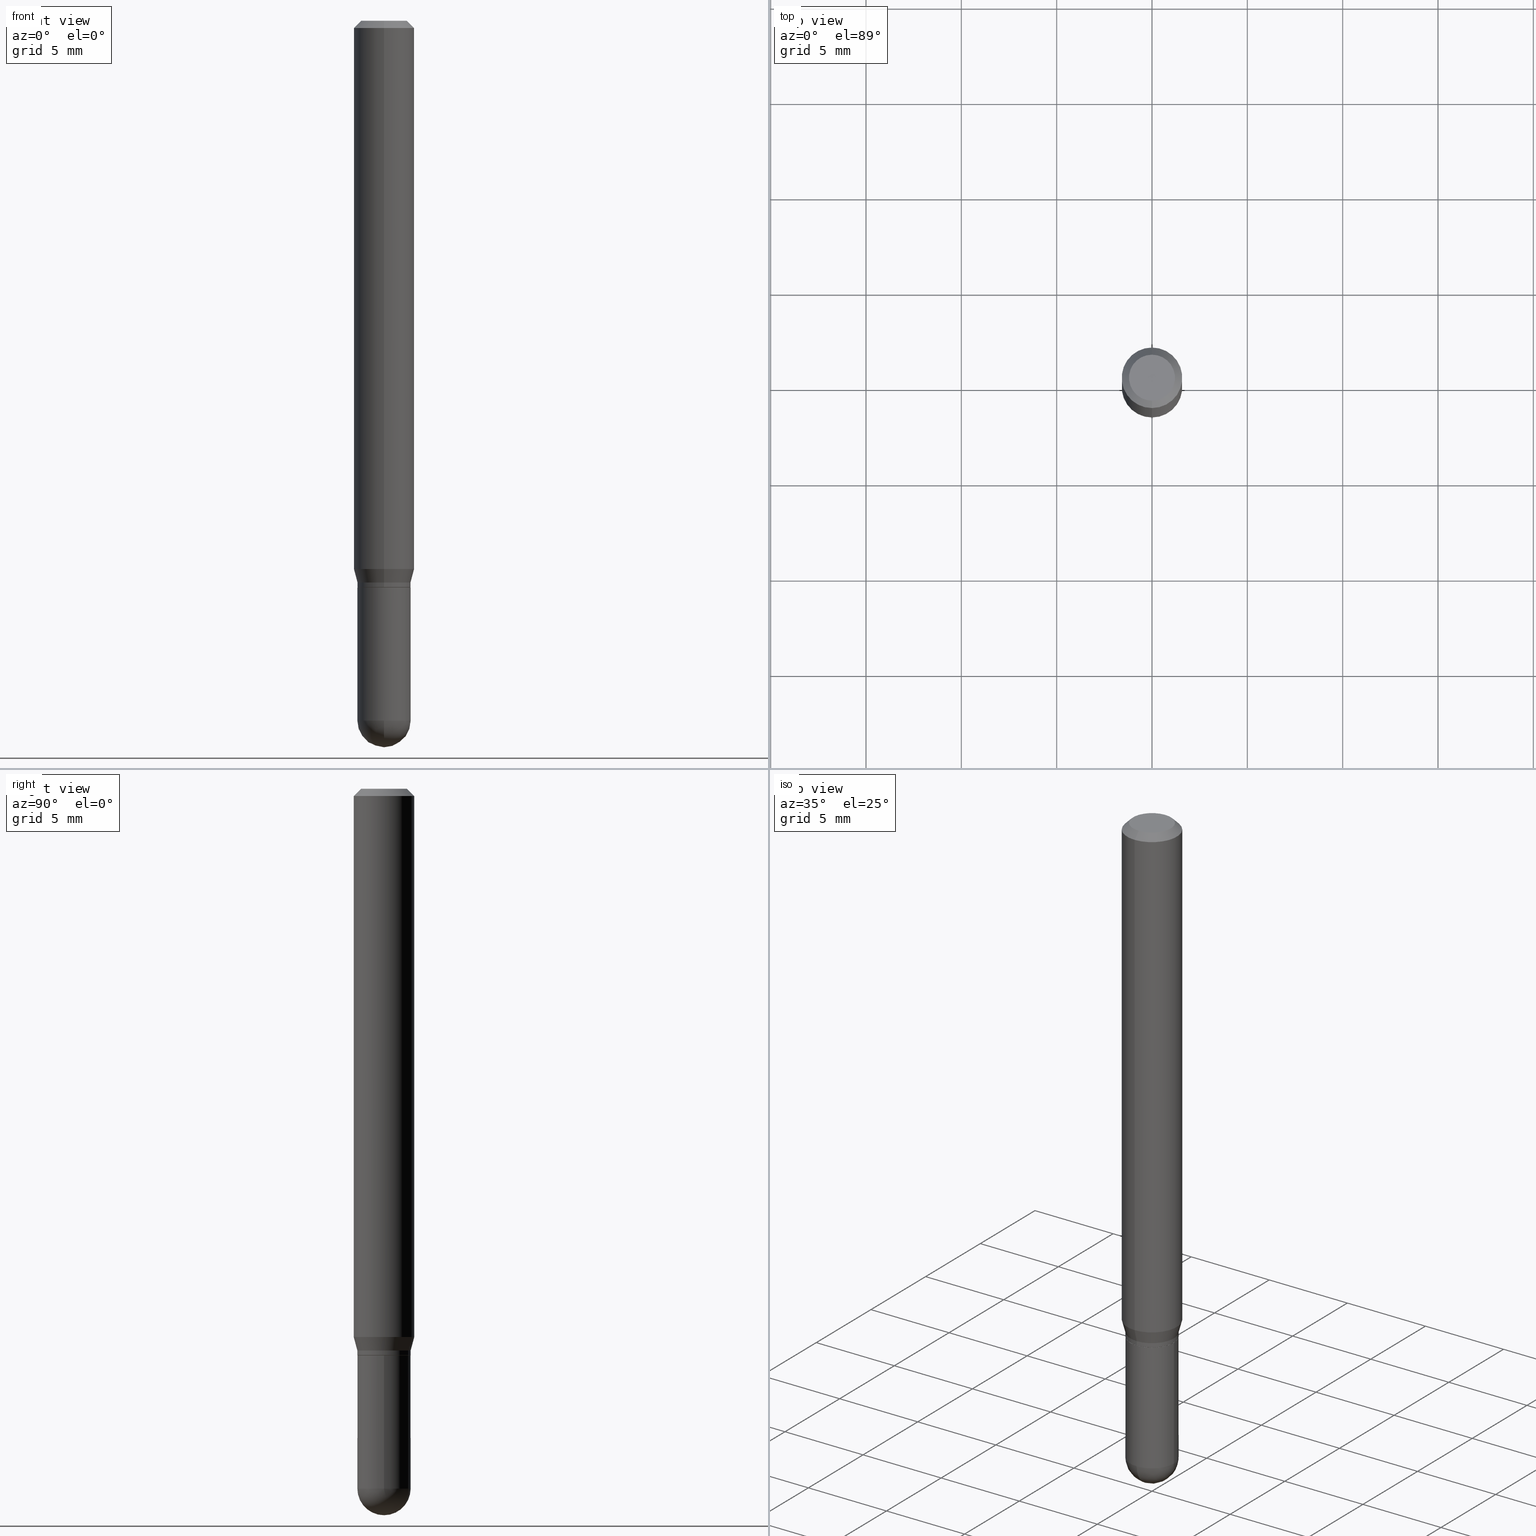
[diagram: canonical four-view strip — front | top / right | iso, engineering-drawing reading convention]
A machine part, canonical four-view strip (front | top / right | iso — engineering-drawing reading convention). The complete STEP part file that produces these views, byte-faithful:
ISO-10303-21;
HEADER;
FILE_DESCRIPTION (( 'STEP AP203' ),
    '1' );
FILE_NAME ('02637.STEP',
    '2024-03-07T20:57:14',
    ( '' ),
    ( '' ),
    'SwSTEP 2.0',
    'SolidWorks 2023',
    '' );
FILE_SCHEMA (( 'CONFIG_CONTROL_DESIGN' ));
ENDSEC;

DATA;
#1 = CARTESIAN_POINT ( 'NONE',  ( 3.907985046680554986E-16, 0.05500000000000006273, -1.920228468592449119E-16 ) ) ;
#2 = VERTEX_POINT ( 'NONE', #331 ) ;
#3 = DIMENSIONAL_EXPONENTS ( 1.000000000000000000, 0.000000000000000000, 0.000000000000000000, 0.000000000000000000, 0.000000000000000000, 0.000000000000000000, 0.000000000000000000 ) ;
#4 = DIRECTION ( 'NONE',  ( -2.445578334299165369E-29, 3.491324488349903437E-15, 1.000000000000000000 ) ) ;
#5 = ORIENTED_EDGE ( 'NONE', *, *, #120, .F. ) ;
#6 = AXIS2_PLACEMENT_3D ( 'NONE', #97, #305, #432 ) ;
#7 = DIRECTION ( 'NONE',  ( -2.445468806185136597E-29, 3.491481338843145583E-15, 1.000000000000000000 ) ) ;
#8 = ADVANCED_FACE ( 'NONE', ( #333 ), #257, .F. ) ;
#9 = VERTEX_POINT ( 'NONE', #212 ) ;
#10 = CIRCLE ( 'NONE', #364, 0.06250000000000000000 ) ;
#11 = DIRECTION ( 'NONE',  ( -6.982962677686265922E-15, -1.000000000000000000, 3.491324488349903437E-15 ) ) ;
#12 = ORIENTED_EDGE ( 'NONE', *, *, #187, .F. ) ;
#13 = CYLINDRICAL_SURFACE ( 'NONE', #329, 0.06250000000000000000 ) ;
#14 = ORIENTED_EDGE ( 'NONE', *, *, #468, .T. ) ;
#15 = VECTOR ( 'NONE', #208, 39.37007874015748143 ) ;
#16 = DIRECTION ( 'NONE',  ( 6.982962677686265922E-15, 1.000000000000000000, -3.491324488349903437E-15 ) ) ;
#17 = CIRCLE ( 'NONE', #64, 0.05500000000000018763 ) ;
#18 = EDGE_CURVE ( 'NONE', #38, #347, #21, .T. ) ;
#19 = DIRECTION ( 'NONE',  ( -6.982962677686266711E-15, -1.000000000000000000, 2.506282562994736586E-15 ) ) ;
#20 = VERTEX_POINT ( 'NONE', #369 ) ;
#21 = LINE ( 'NONE', #50, #29 ) ;
#22 = CC_DESIGN_APPROVAL ( #355, ( #414 ) ) ;
#23 = CARTESIAN_POINT ( 'NONE',  ( 3.907985046680910960E-16, 0.05499999999999503897, -1.445000000000000284 ) ) ;
#24 = PERSON_AND_ORGANIZATION_ROLE ( 'design_owner' ) ;
#25 = DIRECTION ( 'NONE',  ( -6.982962677686265922E-15, -1.000000000000000000, 3.483106191921935554E-15 ) ) ;
#26 = APPLICATION_PROTOCOL_DEFINITION ( 'international standard', 'config_control_design', 1994, #430 ) ;
#27 = DIRECTION ( 'NONE',  ( -2.445468806185136597E-29, 3.491481338843145583E-15, 1.000000000000000000 ) ) ;
#28 = VECTOR ( 'NONE', #356, 39.37007874015748854 ) ;
#29 = VECTOR ( 'NONE', #377, 39.37007874015748143 ) ;
#30 = CARTESIAN_POINT ( 'NONE',  ( 2.861198503236610065E-29, -4.085033166446480067E-15, -1.170000000000000151 ) ) ;
#31 = ORIENTED_EDGE ( 'NONE', *, *, #386, .T. ) ;
#32 = DIRECTION ( 'NONE',  ( 1.000000000000000000, -6.982962677686265922E-15, 4.883557194083112901E-29 ) ) ;
#33 = PERSON_AND_ORGANIZATION_ROLE ( 'design_supplier' ) ;
#34 = DIRECTION ( 'NONE',  ( -6.982962677686266711E-15, -1.000000000000000000, 2.506282562994736586E-15 ) ) ;
#35 = ORIENTED_EDGE ( 'NONE', *, *, #332, .F. ) ;
#36 = VECTOR ( 'NONE', #155, 39.37007874015748854 ) ;
#37 = CARTESIAN_POINT ( 'NONE',  ( -4.364351673553912750E-16, -0.06250000000000005551, -0.01500000000000011047 ) ) ;
#38 = VERTEX_POINT ( 'NONE', #251 ) ;
#39 = PLANE ( 'NONE',  #431 ) ;
#40 = ORIENTED_EDGE ( 'NONE', *, *, #484, .T. ) ;
#41 = ADVANCED_FACE ( 'NONE', ( #457 ), #492, .T. ) ;
#42 = DIRECTION ( 'NONE',  ( 1.000000000000000000, -6.982962677686262766E-15, 0.000000000000000000 ) ) ;
#43 = ORIENTED_EDGE ( 'NONE', *, *, #343, .F. ) ;
#44 = CIRCLE ( 'NONE', #303, 0.05500000000000000028 ) ;
#45 = DIRECTION ( 'NONE',  ( -2.445468806185136597E-29, 3.491481338843145583E-15, 1.000000000000000000 ) ) ;
#46 = ORIENTED_EDGE ( 'NONE', *, *, #133, .T. ) ;
#47 = COORDINATED_UNIVERSAL_TIME_OFFSET ( 5, 0, .BEHIND. ) ;
#48 = DIRECTION ( 'NONE',  ( -2.445468806185136597E-29, 3.491481338843145583E-15, 1.000000000000000000 ) ) ;
#49 = ORIENTED_EDGE ( 'NONE', *, *, #214, .F. ) ;
#50 = CARTESIAN_POINT ( 'NONE',  ( -4.364351673553916201E-16, -0.06250000000000000000, 2.182077805218689648E-16 ) ) ;
#51 = ADVANCED_FACE ( 'NONE', ( #128 ), #92, .T. ) ;
#52 = CIRCLE ( 'NONE', #342, 0.06250000000000000000 ) ;
#53 = CYLINDRICAL_SURFACE ( 'NONE', #378, 0.06250000000000000000 ) ;
#54 = AXIS2_PLACEMENT_3D ( 'NONE', #417, #172, #91 ) ;
#55 = DIRECTION ( 'NONE',  ( -6.982962677686265922E-15, -1.000000000000000000, 2.483498176058418383E-15 ) ) ;
#56 = LINE ( 'NONE', #129, #237 ) ;
#57 = CARTESIAN_POINT ( 'NONE',  ( 3.668367501448828558E-31, -5.236986732524968973E-17, -0.01500000000000032904 ) ) ;
#58 = CIRCLE ( 'NONE', #370, 0.05500000000000000028 ) ;
#59 = DIRECTION ( 'NONE',  ( -4.851104656540964275E-15, -0.7071067811865500152, -0.7071067811865450192 ) ) ;
#60 = FACE_OUTER_BOUND ( 'NONE', #404, .T. ) ;
#61 = ADVANCED_FACE ( 'NONE', ( #87 ), #413, .T. ) ;
#62 = CARTESIAN_POINT ( 'NONE',  ( -3.805714659338729375E-16, -0.05450000000000408684, -1.169999999999999929 ) ) ;
#63 = PERSON_AND_ORGANIZATION ( #429, #396 ) ;
#64 = AXIS2_PLACEMENT_3D ( 'NONE', #118, #400, #358 ) ;
#65 = ADVANCED_FACE ( 'NONE', ( #336 ), #53, .T. ) ;
#66 = AXIS2_PLACEMENT_3D ( 'NONE', #252, #334, #16 ) ;
#67 = CARTESIAN_POINT ( 'NONE',  ( -4.287811248607203282E-16, -0.06250000000000005551, -0.01500000000000011047 ) ) ;
#68 = PERSON_AND_ORGANIZATION ( #429, #396 ) ;
#69 = ORIENTED_EDGE ( 'NONE', *, *, #124, .T. ) ;
#70 = ADVANCED_FACE ( 'NONE', ( #126 ), #171, .T. ) ;
#71 = CARTESIAN_POINT ( 'NONE',  ( 2.860103861962873798E-29, -4.083103989125212121E-15, -1.169499999999999984 ) ) ;
#72 = ORIENTED_EDGE ( 'NONE', *, *, #360, .T. ) ;
#73 = DIRECTION ( 'NONE',  ( -2.445578334299164808E-29, 3.491324488349903437E-15, 1.000000000000000000 ) ) ;
#74 = EDGE_CURVE ( 'NONE', #175, #288, #56, .T. ) ;
#75 = ORIENTED_EDGE ( 'NONE', *, *, #501, .F. ) ;
#76 = AXIS2_PLACEMENT_3D ( 'NONE', #169, #488, #174 ) ;
#77 = DIRECTION ( 'NONE',  ( 6.982962677686265922E-15, 1.000000000000000000, -3.483106191921935554E-15 ) ) ;
#78 = ORIENTED_EDGE ( 'NONE', *, *, #297, .T. ) ;
#79 = CARTESIAN_POINT ( 'NONE',  ( 3.533702424937522517E-29, -5.045190534628345684E-15, -1.445000000000000062 ) ) ;
#80 = VERTEX_POINT ( 'NONE', #496 ) ;
#81 = DIRECTION ( 'NONE',  ( 1.000000000000000000, -6.982962677686262766E-15, 0.000000000000000000 ) ) ;
#82 = ORIENTED_EDGE ( 'NONE', *, *, #489, .T. ) ;
#83 = DIRECTION ( 'NONE',  ( -6.982962677686265922E-15, -1.000000000000000000, 3.491324488349903437E-15 ) ) ;
#84 = ORIENTED_EDGE ( 'NONE', *, *, #295, .T. ) ;
#85 = AXIS2_PLACEMENT_3D ( 'NONE', #381, #302, #104 ) ;
#86 = ADVANCED_FACE ( 'NONE', ( #410 ), #330, .T. ) ;
#87 = FACE_OUTER_BOUND ( 'NONE', #246, .T. ) ;
#88 = EDGE_LOOP ( 'NONE', ( #421, #285, #312, #264 ) ) ;
#89 = EDGE_CURVE ( 'NONE', #117, #362, #456, .T. ) ;
#90 = CIRCLE ( 'NONE', #170, 0.05500000000000006273 ) ;
#91 = DIRECTION ( 'NONE',  ( 6.982962677686265922E-15, 1.000000000000000000, -3.483106191921935554E-15 ) ) ;
#92 = CONICAL_SURFACE ( 'NONE', #54, 0.06250000000000000000, 0.7853981633974483900 ) ;
#93 = DIRECTION ( 'NONE',  ( 1.000000000000000000, -6.982962677686266711E-15, 4.876176775795935793E-29 ) ) ;
#94 = PRODUCT ( '02637', '02637', '', ( #380 ) ) ;
#95 = DIRECTION ( 'NONE',  ( -2.445578334299165369E-29, 3.491324488349903437E-15, 1.000000000000000000 ) ) ;
#96 = APPROVAL_DATE_TIME ( #141, #183 ) ;
#97 = CARTESIAN_POINT ( 'NONE',  ( 2.861198503236610065E-29, -4.085033166446480067E-15, -1.170000000000000151 ) ) ;
#98 = AXIS2_PLACEMENT_3D ( 'NONE', #506, #148, #146 ) ;
#99 = APPROVAL_ROLE ( '' ) ;
#100 = CARTESIAN_POINT ( 'NONE',  ( -0.05500000000000000028, -4.174313345869358610E-15, -1.170000000000000151 ) ) ;
#101 = CALENDAR_DATE ( 2024, 7, 3 ) ;
#102 = LINE ( 'NONE', #507, #313 ) ;
#103 = APPROVAL_DATE_TIME ( #465, #355 ) ;
#104 = DIRECTION ( 'NONE',  ( -1.000000000000000000, 6.982962677686265922E-15, -4.876176775795935793E-29 ) ) ;
#105 = CALENDAR_DATE ( 2024, 7, 3 ) ;
#106 = VECTOR ( 'NONE', #59, 39.37007874015748143 ) ;
#107 = DIRECTION ( 'NONE',  ( -6.982962677686265133E-15, -1.000000000000000000, 2.483498176058417988E-15 ) ) ;
#108 = DATE_AND_TIME ( #310, #142 ) ;
#109 = VERTEX_POINT ( 'NONE', #259 ) ;
#110 = CC_DESIGN_PERSON_AND_ORGANIZATION_ASSIGNMENT ( #179, #341, ( #293 ) ) ;
#111 = LINE ( 'NONE', #275, #15 ) ;
#112 = ORIENTED_EDGE ( 'NONE', *, *, #297, .F. ) ;
#113 = CARTESIAN_POINT ( 'NONE',  ( 2.861326651130023882E-29, -4.084849651369386966E-15, -1.170000000000000151 ) ) ;
#114 = ORIENTED_EDGE ( 'NONE', *, *, #74, .T. ) ;
#115 = CC_DESIGN_APPROVAL ( #256, ( #293 ) ) ;
#116 = CARTESIAN_POINT ( 'NONE',  ( 0.05500000000000000028, -3.840629472727446888E-16, 2.681897226687764826E-30 ) ) ;
#117 = VERTEX_POINT ( 'NONE', #418 ) ;
#118 = CARTESIAN_POINT ( 'NONE',  ( 3.528999010347036160E-29, -5.051926092023656149E-15, -1.445000000000000062 ) ) ;
#119 = ORIENTED_EDGE ( 'NONE', *, *, #167, .T. ) ;
#120 = EDGE_CURVE ( 'NONE', #288, #347, #248, .T. ) ;
#121 = FACE_OUTER_BOUND ( 'NONE', #409, .T. ) ;
#122 = ORIENTED_EDGE ( 'NONE', *, *, #425, .T. ) ;
#123 = AXIS2_PLACEMENT_3D ( 'NONE', #379, #502, #509 ) ;
#124 = EDGE_CURVE ( 'NONE', #347, #288, #10, .T. ) ;
#125 = CARTESIAN_POINT ( 'NONE',  ( 0.000000000000000000, 0.000000000000000000, 0.000000000000000000 ) ) ;
#126 = FACE_OUTER_BOUND ( 'NONE', #447, .T. ) ;
#127 = CIRCLE ( 'NONE', #132, 0.05500000000000000028 ) ;
#128 = FACE_OUTER_BOUND ( 'NONE', #149, .T. ) ;
#129 = CARTESIAN_POINT ( 'NONE',  ( 4.364351673553919652E-16, 0.06249999999999995143, -0.01500000000000054588 ) ) ;
#130 = AXIS2_PLACEMENT_3D ( 'NONE', #435, #265, #262 ) ;
#131 = CARTESIAN_POINT ( 'NONE',  ( 0.000000000000000000, 0.000000000000000000, 0.000000000000000000 ) ) ;
#132 = AXIS2_PLACEMENT_3D ( 'NONE', #30, #229, #309 ) ;
#133 = EDGE_CURVE ( 'NONE', #318, #233, #127, .T. ) ;
#134 = DIRECTION ( 'NONE',  ( 4.937700262164548042E-15, 0.7071067811865451302, -0.7071067811865499042 ) ) ;
#135 = DIRECTION ( 'NONE',  ( -2.445578334299165369E-29, 3.491324488349903437E-15, 1.000000000000000000 ) ) ;
#136 = LINE ( 'NONE', #390, #227 ) ;
#137 = ADVANCED_FACE ( 'NONE', ( #60 ), #389, .T. ) ;
#138 = DIRECTION ( 'NONE',  ( -6.982962677686265922E-15, -1.000000000000000000, 3.491324488349903437E-15 ) ) ;
#139 = CIRCLE ( 'NONE', #486, 0.05500000000000000028 ) ;
#140 = PERSON_AND_ORGANIZATION ( #429, #396 ) ;
#141 = DATE_AND_TIME ( #424, #311 ) ;
#142 = LOCAL_TIME ( 15, 57, 14.00000000000000000, #152 ) ;
#143 = AXIS2_PLACEMENT_3D ( 'NONE', #131, #294, #93 ) ;
#144 = AXIS2_PLACEMENT_3D ( 'NONE', #234, #325, #77 ) ;
#145 = DIRECTION ( 'NONE',  ( -2.445578334299165369E-29, 3.491324488349903437E-15, 1.000000000000000000 ) ) ;
#146 = DIRECTION ( 'NONE',  ( 1.000000000000000000, 0.000000000000000000, 0.000000000000000000 ) ) ;
#147 = CARTESIAN_POINT ( 'NONE',  ( 2.836870867787032287E-29, -4.049936406485888492E-15, -1.160000000000000142 ) ) ;
#148 = DIRECTION ( 'NONE',  ( 0.000000000000000000, 0.000000000000000000, 1.000000000000000000 ) ) ;
#149 = EDGE_LOOP ( 'NONE', ( #472, #119, #69, #166 ) ) ;
#150 = MANIFOLD_SOLID_BREP ( 'Body-Move/Copy2[2]', #205 ) ;
#151 = CARTESIAN_POINT ( 'NONE',  ( -0.05500000000000000028, -4.174313345869358610E-15, -1.445000000000000062 ) ) ;
#152 = COORDINATED_UNIVERSAL_TIME_OFFSET ( 5, 0, .BEHIND. ) ;
#153 = APPLICATION_CONTEXT ( 'configuration controlled 3d designs of mechanical parts and assemblies' ) ;
#154 = CIRCLE ( 'NONE', #451, 0.06250000000000000000 ) ;
#155 = DIRECTION ( 'NONE',  ( 1.839019923739595582E-15, 0.2588190451025242922, 0.9659258262890673130 ) ) ;
#156 = ORIENTED_EDGE ( 'NONE', *, *, #416, .F. ) ;
#157 = DIRECTION ( 'NONE',  ( -6.982962677686266711E-15, -1.000000000000000000, 3.491324488349903437E-15 ) ) ;
#158 = ORIENTED_EDGE ( 'NONE', *, *, #253, .F. ) ;
#159 = ADVANCED_FACE ( 'NONE', ( #273 ), #189, .T. ) ;
#160 = CARTESIAN_POINT ( 'NONE',  ( 3.872457909892832456E-16, 0.05449999999999592670, -1.170000000000000151 ) ) ;
#161 = ORIENTED_EDGE ( 'NONE', *, *, #468, .F. ) ;
#162 = AXIS2_PLACEMENT_3D ( 'NONE', #79, #45, #81 ) ;
#163 = DIRECTION ( 'NONE',  ( 1.000000000000000000, -6.982962677686262766E-15, 0.000000000000000000 ) ) ;
#164 = ORIENTED_EDGE ( 'NONE', *, *, #283, .T. ) ;
#165 = CARTESIAN_POINT ( 'NONE',  ( 3.528999010347036160E-29, -5.051926092023656149E-15, -1.445000000000000062 ) ) ;
#166 = ORIENTED_EDGE ( 'NONE', *, *, #74, .F. ) ;
#167 = EDGE_CURVE ( 'NONE', #2, #347, #184, .T. ) ;
#168 = FACE_OUTER_BOUND ( 'NONE', #441, .T. ) ;
#169 = CARTESIAN_POINT ( 'NONE',  ( 0.000000000000000000, 0.000000000000000000, 0.000000000000000000 ) ) ;
#170 = AXIS2_PLACEMENT_3D ( 'NONE', #71, #178, #464 ) ;
#171 = CONICAL_SURFACE ( 'NONE', #371, 0.05450000000000000677, 0.7853981633974653764 ) ;
#172 = DIRECTION ( 'NONE',  ( 2.445578334299165369E-29, -3.491324488349903437E-15, -1.000000000000000000 ) ) ;
#173 = AXIS2_PLACEMENT_3D ( 'NONE', #57, #218, #415 ) ;
#174 = DIRECTION ( 'NONE',  ( -6.982962677686265922E-15, -1.000000000000000000, 3.491324488349903437E-15 ) ) ;
#175 = VERTEX_POINT ( 'NONE', #224 ) ;
#176 = LOCAL_TIME ( 15, 57, 14.00000000000000000, #345 ) ;
#177 = CARTESIAN_POINT ( 'NONE',  ( 0.000000000000000000, 0.000000000000000000, 0.000000000000000000 ) ) ;
#178 = DIRECTION ( 'NONE',  ( -2.445578334299165369E-29, 3.491324488349903437E-15, 1.000000000000000000 ) ) ;
#179 = PERSON_AND_ORGANIZATION ( #429, #396 ) ;
#180 = APPROVAL_ROLE ( '' ) ;
#181 = DIRECTION ( 'NONE',  ( -2.445468806185136877E-29, 3.491481338843145188E-15, 1.000000000000000000 ) ) ;
#182 = APPROVAL_DATE_TIME ( #272, #256 ) ;
#183 = APPROVAL ( #491, 'UNSPECIFIED' ) ;
#184 = LINE ( 'NONE', #67, #106 ) ;
#185 = APPROVAL_PERSON_ORGANIZATION ( #306, #355, #339 ) ;
#186 = LENGTH_MEASURE_WITH_UNIT ( LENGTH_MEASURE( 0.02539999999999999897 ), #299 );
#187 = EDGE_CURVE ( 'NONE', #278, #233, #102, .T. ) ;
#188 = CARTESIAN_POINT ( 'NONE',  ( 0.000000000000000000, 0.000000000000000000, 0.000000000000000000 ) ) ;
#189 = CYLINDRICAL_SURFACE ( 'NONE', #462, 0.05500000000000000028 ) ;
#190 = ADVANCED_FACE ( 'NONE', ( #226 ), #221, .F. ) ;
#191 = DATE_AND_TIME ( #101, #469 ) ;
#192 = ORIENTED_EDGE ( 'NONE', *, *, #416, .T. ) ;
#193 = CARTESIAN_POINT ( 'NONE',  ( 4.440892098500901277E-16, 0.06249999999999603789, -1.132009618943234264 ) ) ;
#194 = AXIS2_PLACEMENT_3D ( 'NONE', #201, #365, #480 ) ;
#195 = CONICAL_SURFACE ( 'NONE', #372, 0.05500000000000006967, 0.2617993877991495744 ) ;
#196 = LINE ( 'NONE', #361, #28 ) ;
#197 = ORIENTED_EDGE ( 'NONE', *, *, #489, .F. ) ;
#198 = LINE ( 'NONE', #160, #419 ) ;
#199 = ORIENTED_EDGE ( 'NONE', *, *, #376, .F. ) ;
#200 = CC_DESIGN_DATE_AND_TIME_ASSIGNMENT ( #191, #385, ( #293 ) ) ;
#201 = CARTESIAN_POINT ( 'NONE',  ( 2.836870867787032287E-29, -4.049936406485888492E-15, -1.160000000000000142 ) ) ;
#202 = ORIENTED_EDGE ( 'NONE', *, *, #386, .F. ) ;
#203 = AXIS2_PLACEMENT_3D ( 'NONE', #338, #135, #298 ) ;
#204 = CC_DESIGN_APPROVAL ( #183, ( #388 ) ) ;
#205 = CLOSED_SHELL ( 'NONE', ( #137, #70, #51, #65, #216, #225, #497, #316, #8, #374, #86, #61 ) ) ;
#206 = CARTESIAN_POINT ( 'NONE',  ( 3.907985046680839469E-16, 0.05499999999999602429, -1.160000000000000364 ) ) ;
#207 = ORIENTED_EDGE ( 'NONE', *, *, #501, .T. ) ;
#208 = DIRECTION ( 'NONE',  ( -2.445578334299165649E-29, 3.491324488349903437E-15, 1.000000000000000000 ) ) ;
#209 = ORIENTED_EDGE ( 'NONE', *, *, #187, .T. ) ;
#210 = ADVANCED_FACE ( 'NONE', ( #384 ), #307, .T. ) ;
#211 = ORIENTED_EDGE ( 'NONE', *, *, #133, .F. ) ;
#212 = CARTESIAN_POINT ( 'NONE',  ( 4.174438572590871852E-16, 0.05499999999999602429, -1.160000000000000364 ) ) ;
#213 =( GEOMETRIC_REPRESENTATION_CONTEXT ( 3 ) GLOBAL_UNCERTAINTY_ASSIGNED_CONTEXT ( ( #394 ) ) GLOBAL_UNIT_ASSIGNED_CONTEXT ( ( #266, #220, #423 ) ) REPRESENTATION_CONTEXT ( 'NONE', 'WORKASPACE' ) );
#214 = EDGE_CURVE ( 'NONE', #38, #438, #154, .T. ) ;
#215 = CARTESIAN_POINT ( 'NONE',  ( 3.668367501448828558E-31, -5.236986732524968973E-17, -0.01500000000000032904 ) ) ;
#216 = ADVANCED_FACE ( 'NONE', ( #467 ), #195, .T. ) ;
#217 = DIRECTION ( 'NONE',  ( -2.445578334299165369E-29, 3.491324488349903437E-15, 1.000000000000000000 ) ) ;
#218 = DIRECTION ( 'NONE',  ( -2.445578334299165369E-29, 3.491324488349903437E-15, 1.000000000000000000 ) ) ;
#219 = AXIS2_PLACEMENT_3D ( 'NONE', #463, #32, #348 ) ;
#220 =( NAMED_UNIT ( * ) PLANE_ANGLE_UNIT ( ) SI_UNIT ( $, .RADIAN. ) );
#221 = PLANE ( 'NONE',  #85 ) ;
#222 = DIRECTION ( 'NONE',  ( -2.445578334299165649E-29, 3.491324488349903437E-15, 1.000000000000000000 ) ) ;
#223 = VERTEX_POINT ( 'NONE', #23 ) ;
#224 = CARTESIAN_POINT ( 'NONE',  ( 3.840629472727447874E-16, 0.04749999999999999362, -4.939923113072091241E-16 ) ) ;
#225 = ADVANCED_FACE ( 'NONE', ( #499 ), #439, .T. ) ;
#226 = FACE_OUTER_BOUND ( 'NONE', #436, .T. ) ;
#227 = VECTOR ( 'NONE', #222, 39.37007874015748143 ) ;
#228 = EDGE_CURVE ( 'NONE', #233, #318, #254, .T. ) ;
#229 = DIRECTION ( 'NONE',  ( -2.445468806185136597E-29, 3.491481338843145583E-15, 1.000000000000000000 ) ) ;
#230 = PERSON_AND_ORGANIZATION_ROLE ( 'creator' ) ;
#231 = VERTEX_POINT ( 'NONE', #391 ) ;
#232 = LINE ( 'NONE', #206, #36 ) ;
#233 = VERTEX_POINT ( 'NONE', #100 ) ;
#234 = CARTESIAN_POINT ( 'NONE',  ( 3.668367501448828558E-31, -5.236986732524968973E-17, -0.01500000000000032904 ) ) ;
#235 = ORIENTED_EDGE ( 'NONE', *, *, #466, .F. ) ;
#236 = CONICAL_SURFACE ( 'NONE', #144, 0.06250000000000000000, 0.7853981633974483900 ) ;
#237 = VECTOR ( 'NONE', #134, 39.37007874015748143 ) ;
#238 = CIRCLE ( 'NONE', #123, 0.05500000000000018763 ) ;
#239 = DIRECTION ( 'NONE',  ( -4.937700262164631661E-15, -0.7071067811865571207, 0.7071067811865379138 ) ) ;
#240 = PERSON_AND_ORGANIZATION ( #429, #396 ) ;
#241 = EDGE_LOOP ( 'NONE', ( #158, #192, #43, #197 ) ) ;
#242 = CC_DESIGN_PERSON_AND_ORGANIZATION_ASSIGNMENT ( #471, #24, ( #94 ) ) ;
#243 = DIRECTION ( 'NONE',  ( -2.445578334299165649E-29, 3.491324488349903437E-15, 1.000000000000000000 ) ) ;
#244 = ORIENTED_EDGE ( 'NONE', *, *, #228, .F. ) ;
#245 = DIRECTION ( 'NONE',  ( -2.445468806185136877E-29, 3.491481338843145188E-15, 1.000000000000000000 ) ) ;
#246 = EDGE_LOOP ( 'NONE', ( #202, #164, #207, #326 ) ) ;
#247 = LOCAL_TIME ( 15, 57, 14.00000000000000000, #434 ) ;
#248 = CIRCLE ( 'NONE', #173, 0.06250000000000000000 ) ;
#249 = CARTESIAN_POINT ( 'NONE',  ( 2.768418198305827226E-29, -3.952212903664154629E-15, -1.132009618943233820 ) ) ;
#250 = ORIENTED_EDGE ( 'NONE', *, *, #443, .T. ) ;
#251 = CARTESIAN_POINT ( 'NONE',  ( -4.364351673553640100E-16, -0.06250000000000395517, -1.132009618943233598 ) ) ;
#252 = CARTESIAN_POINT ( 'NONE',  ( 3.316907271900976096E-16, 0.04749999999999999362, -3.299151122519147203E-16 ) ) ;
#253 = EDGE_CURVE ( 'NONE', #80, #223, #238, .T. ) ;
#254 = CIRCLE ( 'NONE', #6, 0.05500000000000000028 ) ;
#255 = CARTESIAN_POINT ( 'NONE',  ( 2.861326651130023882E-29, -4.084849651369386966E-15, -1.170000000000000151 ) ) ;
#256 = APPROVAL ( #269, 'UNSPECIFIED' ) ;
#257 = PLANE ( 'NONE',  #66 ) ;
#258 = EDGE_CURVE ( 'NONE', #109, #9, #363, .T. ) ;
#259 = CARTESIAN_POINT ( 'NONE',  ( -3.840629472727166842E-16, -0.05500000000000411504, -1.160000000000000142 ) ) ;
#260 = VECTOR ( 'NONE', #245, 39.37007874015748143 ) ;
#261 = CC_DESIGN_PERSON_AND_ORGANIZATION_ASSIGNMENT ( #68, #230, ( #414 ) ) ;
#262 = DIRECTION ( 'NONE',  ( -6.982962677686265133E-15, -1.000000000000000000, 2.483498176058417988E-15 ) ) ;
#263 = APPROVAL_STATUS ( 'not_yet_approved' ) ;
#264 = ORIENTED_EDGE ( 'NONE', *, *, #18, .F. ) ;
#265 = DIRECTION ( 'NONE',  ( -2.445578334299165369E-29, 3.491324488349903437E-15, 1.000000000000000000 ) ) ;
#266 =( CONVERSION_BASED_UNIT ( 'INCH', #186 ) LENGTH_UNIT ( ) NAMED_UNIT ( #3 ) );
#267 = SHAPE_DEFINITION_REPRESENTATION ( #498, #412 ) ;
#268 = CARTESIAN_POINT ( 'NONE',  ( 4.440892098500904235E-16, 0.06249999999999995143, -0.01500000000000054588 ) ) ;
#269 = APPROVAL_STATUS ( 'not_yet_approved' ) ;
#270 = DIRECTION ( 'NONE',  ( -2.445578334299165369E-29, 3.491324488349903437E-15, 1.000000000000000000 ) ) ;
#271 = CIRCLE ( 'NONE', #162, 0.05500000000000000028 ) ;
#272 = DATE_AND_TIME ( #105, #176 ) ;
#273 = FACE_OUTER_BOUND ( 'NONE', #398, .T. ) ;
#274 = DATE_TIME_ROLE ( 'classification_date' ) ;
#275 = CARTESIAN_POINT ( 'NONE',  ( 4.440892098500625669E-16, 0.06250000000000000000, -2.182077805218689648E-16 ) ) ;
#276 = ORIENTED_EDGE ( 'NONE', *, *, #89, .F. ) ;
#277 = FACE_OUTER_BOUND ( 'NONE', #241, .T. ) ;
#278 = VERTEX_POINT ( 'NONE', #151 ) ;
#279 = AXIS2_PLACEMENT_3D ( 'NONE', #147, #270, #107 ) ;
#280 = CIRCLE ( 'NONE', #351, 0.05450000000000000677 ) ;
#281 = FACE_OUTER_BOUND ( 'NONE', #450, .T. ) ;
#282 = EDGE_LOOP ( 'NONE', ( #12, #368, #454, #324, #244 ) ) ;
#283 = EDGE_CURVE ( 'NONE', #362, #117, #90, .T. ) ;
#284 = CARTESIAN_POINT ( 'NONE',  ( 3.890221478286836949E-16, 0.05449999999999592670, -1.170000000000000151 ) ) ;
#285 = ORIENTED_EDGE ( 'NONE', *, *, #475, .T. ) ;
#286 = CC_DESIGN_PERSON_AND_ORGANIZATION_ASSIGNMENT ( #63, #349, ( #388 ) ) ;
#287 = CARTESIAN_POINT ( 'NONE',  ( 2.861326651130023882E-29, -4.084849651369386966E-15, -1.170000000000000151 ) ) ;
#288 = VERTEX_POINT ( 'NONE', #268 ) ;
#289 = DIRECTION ( 'NONE',  ( -2.445578334299165369E-29, 3.491324488349903437E-15, 1.000000000000000000 ) ) ;
#290 = ORIENTED_EDGE ( 'NONE', *, *, #18, .T. ) ;
#291 = EDGE_LOOP ( 'NONE', ( #161, #315, #477, #366 ) ) ;
#292 = VERTEX_POINT ( 'NONE', #62 ) ;
#293 = PRODUCT_DEFINITION ( 'UNKNOWN', '', #414, #433 ) ;
#294 = DIRECTION ( 'NONE',  ( -2.445468806185136597E-29, 3.491481338843145583E-15, 1.000000000000000000 ) ) ;
#295 = EDGE_CURVE ( 'NONE', #2, #175, #455, .T. ) ;
#296 = DIRECTION ( 'NONE',  ( -6.982962677686266711E-15, -1.000000000000000000, 2.506282562994736586E-15 ) ) ;
#297 = EDGE_CURVE ( 'NONE', #175, #2, #494, .T. ) ;
#298 = DIRECTION ( 'NONE',  ( -6.982962677686266711E-15, -1.000000000000000000, 3.491324488349903437E-15 ) ) ;
#299 =( LENGTH_UNIT ( ) NAMED_UNIT ( * ) SI_UNIT ( $, .METRE. ) );
#300 = EDGE_LOOP ( 'NONE', ( #35, #122, #321, #512 ) ) ;
#301 = CIRCLE ( 'NONE', #194, 0.05500000000000006967 ) ;
#302 = DIRECTION ( 'NONE',  ( 2.438088387897960049E-29, -3.491481338843145188E-15, -1.000000000000000000 ) ) ;
#303 = AXIS2_PLACEMENT_3D ( 'NONE', #485, #48, #367 ) ;
#304 = COORDINATED_UNIVERSAL_TIME_OFFSET ( 5, 0, .BEHIND. ) ;
#305 = DIRECTION ( 'NONE',  ( -2.445468806185136597E-29, 3.491481338843145583E-15, 1.000000000000000000 ) ) ;
#306 = PERSON_AND_ORGANIZATION ( #429, #396 ) ;
#307 = SPHERICAL_SURFACE ( 'NONE', #219, 0.05500000000000018763 ) ;
#308 = EDGE_CURVE ( 'NONE', #9, #109, #301, .T. ) ;
#309 = DIRECTION ( 'NONE',  ( 1.000000000000000000, -6.982962677686262766E-15, 0.000000000000000000 ) ) ;
#310 = CALENDAR_DATE ( 2024, 7, 3 ) ;
#311 = LOCAL_TIME ( 15, 57, 14.00000000000000000, #47 ) ;
#312 = ORIENTED_EDGE ( 'NONE', *, *, #124, .F. ) ;
#313 = VECTOR ( 'NONE', #181, 39.37007874015748143 ) ;
#314 = DIRECTION ( 'NONE',  ( -2.445468806185136597E-29, 3.491481338843145583E-15, 1.000000000000000000 ) ) ;
#315 = ORIENTED_EDGE ( 'NONE', *, *, #308, .T. ) ;
#316 = ADVANCED_FACE ( 'NONE', ( #281 ), #236, .T. ) ;
#317 = CARTESIAN_POINT ( 'NONE',  ( 2.861326651130023882E-29, -4.084849651369386966E-15, -1.170000000000000151 ) ) ;
#318 = VERTEX_POINT ( 'NONE', #393 ) ;
#319 = MANIFOLD_SOLID_BREP ( 'Body-Move/Copy2[1]', #354 ) ;
#320 = CARTESIAN_POINT ( 'NONE',  ( -3.805714659338729375E-16, -0.05450000000000408684, -1.169999999999999929 ) ) ;
#321 = ORIENTED_EDGE ( 'NONE', *, *, #346, .T. ) ;
#322 = AXIS2_PLACEMENT_3D ( 'NONE', #113, #473, #449 ) ;
#323 = DIRECTION ( 'NONE',  ( 5.024295867788147587E-15, 0.7071067811865620056, 0.7071067811865330288 ) ) ;
#324 = ORIENTED_EDGE ( 'NONE', *, *, #466, .T. ) ;
#325 = DIRECTION ( 'NONE',  ( 2.445578334299165369E-29, -3.491324488349903437E-15, -1.000000000000000000 ) ) ;
#326 = ORIENTED_EDGE ( 'NONE', *, *, #308, .F. ) ;
#327 = DIRECTION ( 'NONE',  ( -6.982962677686265922E-15, -1.000000000000000000, 4.370956789862821150E-15 ) ) ;
#328 = DIRECTION ( 'NONE',  ( -2.445578334299165369E-29, 3.491324488349903437E-15, 1.000000000000000000 ) ) ;
#329 = AXIS2_PLACEMENT_3D ( 'NONE', #125, #289, #83 ) ;
#330 = CONICAL_SURFACE ( 'NONE', #399, 0.05450000000000000677, 0.7853981633974653764 ) ;
#331 = CARTESIAN_POINT ( 'NONE',  ( -3.773273898774340269E-16, -0.04749999999999999362, -1.623164849139683183E-16 ) ) ;
#332 = EDGE_CURVE ( 'NONE', #445, #362, #198, .T. ) ;
#333 = FACE_OUTER_BOUND ( 'NONE', #428, .T. ) ;
#334 = DIRECTION ( 'NONE',  ( 2.445578334299164808E-29, -3.491324488349903437E-15, -1.000000000000000000 ) ) ;
#335 = AXIS2_PLACEMENT_3D ( 'NONE', #188, #145, #138 ) ;
#336 = FACE_OUTER_BOUND ( 'NONE', #88, .T. ) ;
#337 = CC_DESIGN_PERSON_AND_ORGANIZATION_ASSIGNMENT ( #392, #33, ( #414 ) ) ;
#338 = CARTESIAN_POINT ( 'NONE',  ( 8.025272863242386693E-45, -1.145693486083221575E-30, -3.281543981105887088E-16 ) ) ;
#339 = APPROVAL_ROLE ( '' ) ;
#340 = CARTESIAN_POINT ( 'NONE',  ( 2.836870867787032287E-29, -4.049936406485888492E-15, -1.160000000000000142 ) ) ;
#341 = PERSON_AND_ORGANIZATION_ROLE ( 'creator' ) ;
#342 = AXIS2_PLACEMENT_3D ( 'NONE', #249, #408, #327 ) ;
#343 = EDGE_CURVE ( 'NONE', #278, #20, #58, .T. ) ;
#344 = DIRECTION ( 'NONE',  ( -2.445578334299165369E-29, 3.491324488349903437E-15, 1.000000000000000000 ) ) ;
#345 = COORDINATED_UNIVERSAL_TIME_OFFSET ( 5, 0, .BEHIND. ) ;
#346 = EDGE_CURVE ( 'NONE', #292, #117, #397, .T. ) ;
#347 = VERTEX_POINT ( 'NONE', #37 ) ;
#348 = DIRECTION ( 'NONE',  ( -6.982962677686265922E-15, -1.000000000000000000, 4.966996352116824932E-15 ) ) ;
#349 = PERSON_AND_ORGANIZATION_ROLE ( 'classification_officer' ) ;
#350 = ORIENTED_EDGE ( 'NONE', *, *, #475, .F. ) ;
#351 = AXIS2_PLACEMENT_3D ( 'NONE', #317, #405, #34 ) ;
#352 = LINE ( 'NONE', #1, #478 ) ;
#353 = APPROVAL_PERSON_ORGANIZATION ( #240, #183, #180 ) ;
#354 = CLOSED_SHELL ( 'NONE', ( #159, #210, #190, #448, #41 ) ) ;
#355 = APPROVAL ( #263, 'UNSPECIFIED' ) ;
#356 = DIRECTION ( 'NONE',  ( -1.807323732225325406E-15, -0.2588190451025175198, 0.9659258262890690894 ) ) ;
#357 = ORIENTED_EDGE ( 'NONE', *, *, #443, .F. ) ;
#358 = DIRECTION ( 'NONE',  ( -6.982962677686265922E-15, -1.000000000000000000, 0.000000000000000000 ) ) ;
#359 = ORIENTED_EDGE ( 'NONE', *, *, #402, .F. ) ;
#360 = EDGE_CURVE ( 'NONE', #292, #445, #280, .T. ) ;
#361 = CARTESIAN_POINT ( 'NONE',  ( -3.840629472727166842E-16, -0.05500000000000411504, -1.160000000000000142 ) ) ;
#362 = VERTEX_POINT ( 'NONE', #482 ) ;
#363 = CIRCLE ( 'NONE', #130, 0.05500000000000006967 ) ;
#364 = AXIS2_PLACEMENT_3D ( 'NONE', #215, #375, #25 ) ;
#365 = DIRECTION ( 'NONE',  ( -2.445578334299165369E-29, 3.491324488349903437E-15, 1.000000000000000000 ) ) ;
#366 = ORIENTED_EDGE ( 'NONE', *, *, #484, .F. ) ;
#367 = DIRECTION ( 'NONE',  ( 1.000000000000000000, -6.982962677686262766E-15, 0.000000000000000000 ) ) ;
#368 = ORIENTED_EDGE ( 'NONE', *, *, #343, .T. ) ;
#369 = CARTESIAN_POINT ( 'NONE',  ( -3.840629472727099789E-16, -0.05500000000000514894, -1.444999999999999840 ) ) ;
#370 = AXIS2_PLACEMENT_3D ( 'NONE', #511, #314, #42 ) ;
#371 = AXIS2_PLACEMENT_3D ( 'NONE', #490, #487, #19 ) ;
#372 = AXIS2_PLACEMENT_3D ( 'NONE', #340, #470, #505 ) ;
#373 = DIRECTION ( 'NONE',  ( -6.982962677686265922E-15, -1.000000000000000000, 3.491324488349903437E-15 ) ) ;
#374 = ADVANCED_FACE ( 'NONE', ( #121 ), #39, .F. ) ;
#375 = DIRECTION ( 'NONE',  ( -2.445578334299165369E-29, 3.491324488349903437E-15, 1.000000000000000000 ) ) ;
#376 = EDGE_CURVE ( 'NONE', #109, #38, #196, .T. ) ;
#377 = DIRECTION ( 'NONE',  ( -2.445578334299165649E-29, 3.491324488349903437E-15, 1.000000000000000000 ) ) ;
#378 = AXIS2_PLACEMENT_3D ( 'NONE', #177, #328, #373 ) ;
#379 = CARTESIAN_POINT ( 'NONE',  ( 3.528999010347036160E-29, -5.051926092023656149E-15, -1.445000000000000062 ) ) ;
#380 = MECHANICAL_CONTEXT ( 'NONE', #153, 'mechanical' ) ;
#381 = CARTESIAN_POINT ( 'NONE',  ( 3.840629472727732850E-16, 0.05499999999999591327, -1.170000000000000151 ) ) ;
#382 = APPLICATION_PROTOCOL_DEFINITION ( 'international standard', 'config_control_design', 1994, #153 ) ;
#383 = ORIENTED_EDGE ( 'NONE', *, *, #228, .T. ) ;
#384 = FACE_OUTER_BOUND ( 'NONE', #474, .T. ) ;
#385 = DATE_TIME_ROLE ( 'creation_date' ) ;
#386 = EDGE_CURVE ( 'NONE', #362, #9, #352, .T. ) ;
#387 = AXIS2_PLACEMENT_3D ( 'NONE', #165, #403, #446 ) ;
#388 = SECURITY_CLASSIFICATION ( '', '', #427 ) ;
#389 = CYLINDRICAL_SURFACE ( 'NONE', #335, 0.05500000000000006273 ) ;
#390 = CARTESIAN_POINT ( 'NONE',  ( -3.840629472727450832E-16, -0.05500000000000006273, 1.920228468592449119E-16 ) ) ;
#391 = CARTESIAN_POINT ( 'NONE',  ( 0.05500000000000000028, -4.949174797810157466E-15, -1.445000000000000062 ) ) ;
#392 = PERSON_AND_ORGANIZATION ( #429, #396 ) ;
#393 = CARTESIAN_POINT ( 'NONE',  ( 0.05500000000000000028, -4.469096113719225052E-15, -1.170000000000000151 ) ) ;
#394 = UNCERTAINTY_MEASURE_WITH_UNIT (LENGTH_MEASURE( 1.000000000000000082E-05 ), #266, 'distance_accuracy_value', 'NONE');
#395 = ORIENTED_EDGE ( 'NONE', *, *, #120, .T. ) ;
#396 = ORGANIZATION ( 'UNSPECIFIED', 'UNSPECIFIED', '' ) ;
#397 = LINE ( 'NONE', #320, #504 ) ;
#398 = EDGE_LOOP ( 'NONE', ( #82, #209, #211, #235, #250 ) ) ;
#399 = AXIS2_PLACEMENT_3D ( 'NONE', #255, #217, #296 ) ;
#400 = DIRECTION ( 'NONE',  ( -1.000000000000000000, 6.982962677686265922E-15, -4.883557194083112340E-29 ) ) ;
#401 = ORIENTED_EDGE ( 'NONE', *, *, #360, .F. ) ;
#402 = EDGE_CURVE ( 'NONE', #20, #231, #139, .T. ) ;
#403 = DIRECTION ( 'NONE',  ( 1.000000000000000000, -6.982962677686265922E-15, 4.883557194083112901E-29 ) ) ;
#404 = EDGE_LOOP ( 'NONE', ( #453, #31, #479, #75 ) ) ;
#405 = DIRECTION ( 'NONE',  ( -2.445578334299165369E-29, 3.491324488349903437E-15, 1.000000000000000000 ) ) ;
#406 = ORIENTED_EDGE ( 'NONE', *, *, #346, .F. ) ;
#407 = APPROVAL_PERSON_ORGANIZATION ( #140, #256, #99 ) ;
#408 = DIRECTION ( 'NONE',  ( -2.445578334299165369E-29, 3.491324488349903437E-15, 1.000000000000000000 ) ) ;
#409 = EDGE_LOOP ( 'NONE', ( #401, #508 ) ) ;
#410 = FACE_OUTER_BOUND ( 'NONE', #300, .T. ) ;
#411 = PRODUCT_RELATED_PRODUCT_CATEGORY ( 'detail', '', ( #94 ) ) ;
#412 = ADVANCED_BREP_SHAPE_REPRESENTATION ( '02637', ( #319, #150, #98 ), #213 ) ;
#413 = CYLINDRICAL_SURFACE ( 'NONE', #76, 0.05500000000000006273 ) ;
#414 = PRODUCT_DEFINITION_FORMATION_WITH_SPECIFIED_SOURCE ( 'ANY', '', #94, .NOT_KNOWN. ) ;
#415 = DIRECTION ( 'NONE',  ( -6.982962677686265922E-15, -1.000000000000000000, 3.483106191921935554E-15 ) ) ;
#416 = EDGE_CURVE ( 'NONE', #80, #20, #17, .T. ) ;
#417 = CARTESIAN_POINT ( 'NONE',  ( 3.668367501448828558E-31, -5.236986732524968973E-17, -0.01500000000000032904 ) ) ;
#418 = CARTESIAN_POINT ( 'NONE',  ( -3.840629472727168322E-16, -0.05500000000000419137, -1.169499999999999984 ) ) ;
#419 = VECTOR ( 'NONE', #323, 39.37007874015748143 ) ;
#420 = CARTESIAN_POINT ( 'NONE',  ( 0.000000000000000000, 0.000000000000000000, 0.000000000000000000 ) ) ;
#421 = ORIENTED_EDGE ( 'NONE', *, *, #214, .T. ) ;
#422 = DIRECTION ( 'NONE',  ( 1.000000000000000000, -6.982962677686266711E-15, 4.876176775795935793E-29 ) ) ;
#423 =( NAMED_UNIT ( * ) SI_UNIT ( $, .STERADIAN. ) SOLID_ANGLE_UNIT ( ) );
#424 = CALENDAR_DATE ( 2024, 7, 3 ) ;
#425 = EDGE_CURVE ( 'NONE', #445, #292, #503, .T. ) ;
#426 = CARTESIAN_POINT ( 'NONE',  ( 2.768418198305827226E-29, -3.952212903664154629E-15, -1.132009618943233820 ) ) ;
#427 = SECURITY_CLASSIFICATION_LEVEL ( 'unclassified' ) ;
#428 = EDGE_LOOP ( 'NONE', ( #78, #84 ) ) ;
#429 = PERSON ( 'UNSPECIFIED', 'UNSPECIFIED', 'UNSPECIFIED', ('UNSPECIFIED'), ('UNSPECIFIED'), ('UNSPECIFIED') ) ;
#430 = APPLICATION_CONTEXT ( 'configuration controlled 3d designs of mechanical parts and assemblies' ) ;
#431 = AXIS2_PLACEMENT_3D ( 'NONE', #287, #73, #11 ) ;
#432 = DIRECTION ( 'NONE',  ( 1.000000000000000000, -6.982962677686262766E-15, 0.000000000000000000 ) ) ;
#433 = DESIGN_CONTEXT ( 'detailed design', #430, 'design' ) ;
#434 = COORDINATED_UNIVERSAL_TIME_OFFSET ( 5, 0, .BEHIND. ) ;
#435 = CARTESIAN_POINT ( 'NONE',  ( 2.836870867787032287E-29, -4.049936406485888492E-15, -1.160000000000000142 ) ) ;
#436 = EDGE_LOOP ( 'NONE', ( #46, #383 ) ) ;
#437 = CARTESIAN_POINT ( 'NONE',  ( 8.025272863242386693E-45, -1.145693486083221575E-30, -3.281543981105887088E-16 ) ) ;
#438 = VERTEX_POINT ( 'NONE', #193 ) ;
#439 = CONICAL_SURFACE ( 'NONE', #279, 0.05500000000000006967, 0.2617993877991495744 ) ;
#440 = SPHERICAL_SURFACE ( 'NONE', #387, 0.05500000000000018763 ) ;
#441 = EDGE_LOOP ( 'NONE', ( #350, #40, #290, #5 ) ) ;
#442 = AXIS2_PLACEMENT_3D ( 'NONE', #458, #95, #55 ) ;
#443 = EDGE_CURVE ( 'NONE', #231, #223, #271, .T. ) ;
#444 = LINE ( 'NONE', #116, #260 ) ;
#445 = VERTEX_POINT ( 'NONE', #284 ) ;
#446 = DIRECTION ( 'NONE',  ( -6.982962677686265922E-15, -1.000000000000000000, 4.966996352116824932E-15 ) ) ;
#447 = EDGE_LOOP ( 'NONE', ( #72, #510, #276, #406 ) ) ;
#448 = ADVANCED_FACE ( 'NONE', ( #277 ), #440, .T. ) ;
#449 = DIRECTION ( 'NONE',  ( -6.982962677686266711E-15, -1.000000000000000000, 2.506282562994736586E-15 ) ) ;
#450 = EDGE_LOOP ( 'NONE', ( #483, #112, #114, #395 ) ) ;
#451 = AXIS2_PLACEMENT_3D ( 'NONE', #426, #344, #459 ) ;
#452 = ORIENTED_EDGE ( 'NONE', *, *, #258, .T. ) ;
#453 = ORIENTED_EDGE ( 'NONE', *, *, #89, .T. ) ;
#454 = ORIENTED_EDGE ( 'NONE', *, *, #402, .T. ) ;
#455 = CIRCLE ( 'NONE', #203, 0.04749999999999999362 ) ;
#456 = CIRCLE ( 'NONE', #442, 0.05500000000000006273 ) ;
#457 = FACE_OUTER_BOUND ( 'NONE', #282, .T. ) ;
#458 = CARTESIAN_POINT ( 'NONE',  ( 2.860103861962873798E-29, -4.083103989125212121E-15, -1.169499999999999984 ) ) ;
#459 = DIRECTION ( 'NONE',  ( -6.982962677686265922E-15, -1.000000000000000000, 4.370956789862821150E-15 ) ) ;
#460 = EDGE_LOOP ( 'NONE', ( #452, #14, #49, #199 ) ) ;
#461 = AXIS2_PLACEMENT_3D ( 'NONE', #437, #4, #157 ) ;
#462 = AXIS2_PLACEMENT_3D ( 'NONE', #420, #27, #422 ) ;
#463 = CARTESIAN_POINT ( 'NONE',  ( 3.528999010347036160E-29, -5.051926092023656149E-15, -1.445000000000000062 ) ) ;
#464 = DIRECTION ( 'NONE',  ( -6.982962677686265922E-15, -1.000000000000000000, 2.483498176058418383E-15 ) ) ;
#465 = DATE_AND_TIME ( #500, #247 ) ;
#466 = EDGE_CURVE ( 'NONE', #231, #318, #444, .T. ) ;
#467 = FACE_OUTER_BOUND ( 'NONE', #460, .T. ) ;
#468 = EDGE_CURVE ( 'NONE', #9, #438, #232, .T. ) ;
#469 = LOCAL_TIME ( 15, 57, 14.00000000000000000, #304 ) ;
#470 = DIRECTION ( 'NONE',  ( -2.445578334299165369E-29, 3.491324488349903437E-15, 1.000000000000000000 ) ) ;
#471 = PERSON_AND_ORGANIZATION ( #429, #396 ) ;
#472 = ORIENTED_EDGE ( 'NONE', *, *, #295, .F. ) ;
#473 = DIRECTION ( 'NONE',  ( -2.445578334299165369E-29, 3.491324488349903437E-15, 1.000000000000000000 ) ) ;
#474 = EDGE_LOOP ( 'NONE', ( #156, #481, #357, #359 ) ) ;
#475 = EDGE_CURVE ( 'NONE', #438, #288, #111, .T. ) ;
#476 = CARTESIAN_POINT ( 'NONE',  ( 3.533702424937522517E-29, -5.045190534628345684E-15, -1.445000000000000062 ) ) ;
#477 = ORIENTED_EDGE ( 'NONE', *, *, #376, .T. ) ;
#478 = VECTOR ( 'NONE', #243, 39.37007874015748143 ) ;
#479 = ORIENTED_EDGE ( 'NONE', *, *, #258, .F. ) ;
#480 = DIRECTION ( 'NONE',  ( -6.982962677686265133E-15, -1.000000000000000000, 2.483498176058417988E-15 ) ) ;
#481 = ORIENTED_EDGE ( 'NONE', *, *, #253, .T. ) ;
#482 = CARTESIAN_POINT ( 'NONE',  ( 3.907985046680837004E-16, 0.05499999999999592715, -1.169500000000000206 ) ) ;
#483 = ORIENTED_EDGE ( 'NONE', *, *, #167, .F. ) ;
#484 = EDGE_CURVE ( 'NONE', #438, #38, #52, .T. ) ;
#485 = CARTESIAN_POINT ( 'NONE',  ( 3.533702424937522517E-29, -5.045190534628345684E-15, -1.445000000000000062 ) ) ;
#486 = AXIS2_PLACEMENT_3D ( 'NONE', #476, #7, #163 ) ;
#487 = DIRECTION ( 'NONE',  ( -2.445578334299165369E-29, 3.491324488349903437E-15, 1.000000000000000000 ) ) ;
#488 = DIRECTION ( 'NONE',  ( -2.445578334299165369E-29, 3.491324488349903437E-15, 1.000000000000000000 ) ) ;
#489 = EDGE_CURVE ( 'NONE', #223, #278, #44, .T. ) ;
#490 = CARTESIAN_POINT ( 'NONE',  ( 2.861326651130023882E-29, -4.084849651369386966E-15, -1.170000000000000151 ) ) ;
#491 = APPROVAL_STATUS ( 'not_yet_approved' ) ;
#492 = CYLINDRICAL_SURFACE ( 'NONE', #143, 0.05500000000000000028 ) ;
#493 = CC_DESIGN_DATE_AND_TIME_ASSIGNMENT ( #108, #274, ( #388 ) ) ;
#494 = CIRCLE ( 'NONE', #461, 0.04749999999999999362 ) ;
#495 = CC_DESIGN_SECURITY_CLASSIFICATION ( #388, ( #414 ) ) ;
#496 = CARTESIAN_POINT ( 'NONE',  ( 3.661148087391975640E-29, -5.247325344357685057E-15, -1.500000000000000222 ) ) ;
#497 = ADVANCED_FACE ( 'NONE', ( #168 ), #13, .T. ) ;
#498 = PRODUCT_DEFINITION_SHAPE ( 'NONE', 'NONE',  #293 ) ;
#499 = FACE_OUTER_BOUND ( 'NONE', #291, .T. ) ;
#500 = CALENDAR_DATE ( 2024, 7, 3 ) ;
#501 = EDGE_CURVE ( 'NONE', #117, #109, #136, .T. ) ;
#502 = DIRECTION ( 'NONE',  ( 1.000000000000000000, -7.105427357601001070E-15, 4.926315508542082329E-29 ) ) ;
#503 = CIRCLE ( 'NONE', #322, 0.05450000000000000677 ) ;
#504 = VECTOR ( 'NONE', #239, 39.37007874015748143 ) ;
#505 = DIRECTION ( 'NONE',  ( -6.982962677686265133E-15, -1.000000000000000000, 2.483498176058417988E-15 ) ) ;
#506 = CARTESIAN_POINT ( 'NONE',  ( 0.000000000000000000, 0.000000000000000000, 0.000000000000000000 ) ) ;
#507 = CARTESIAN_POINT ( 'NONE',  ( -0.05500000000000000028, 3.907985046680551042E-16, -2.705414299640198362E-30 ) ) ;
#508 = ORIENTED_EDGE ( 'NONE', *, *, #425, .F. ) ;
#509 = DIRECTION ( 'NONE',  ( 7.105427357601001070E-15, 1.000000000000000000, 0.000000000000000000 ) ) ;
#510 = ORIENTED_EDGE ( 'NONE', *, *, #332, .T. ) ;
#511 = CARTESIAN_POINT ( 'NONE',  ( 3.533702424937522517E-29, -5.045190534628345684E-15, -1.445000000000000062 ) ) ;
#512 = ORIENTED_EDGE ( 'NONE', *, *, #283, .F. ) ;
ENDSEC;
END-ISO-10303-21;
